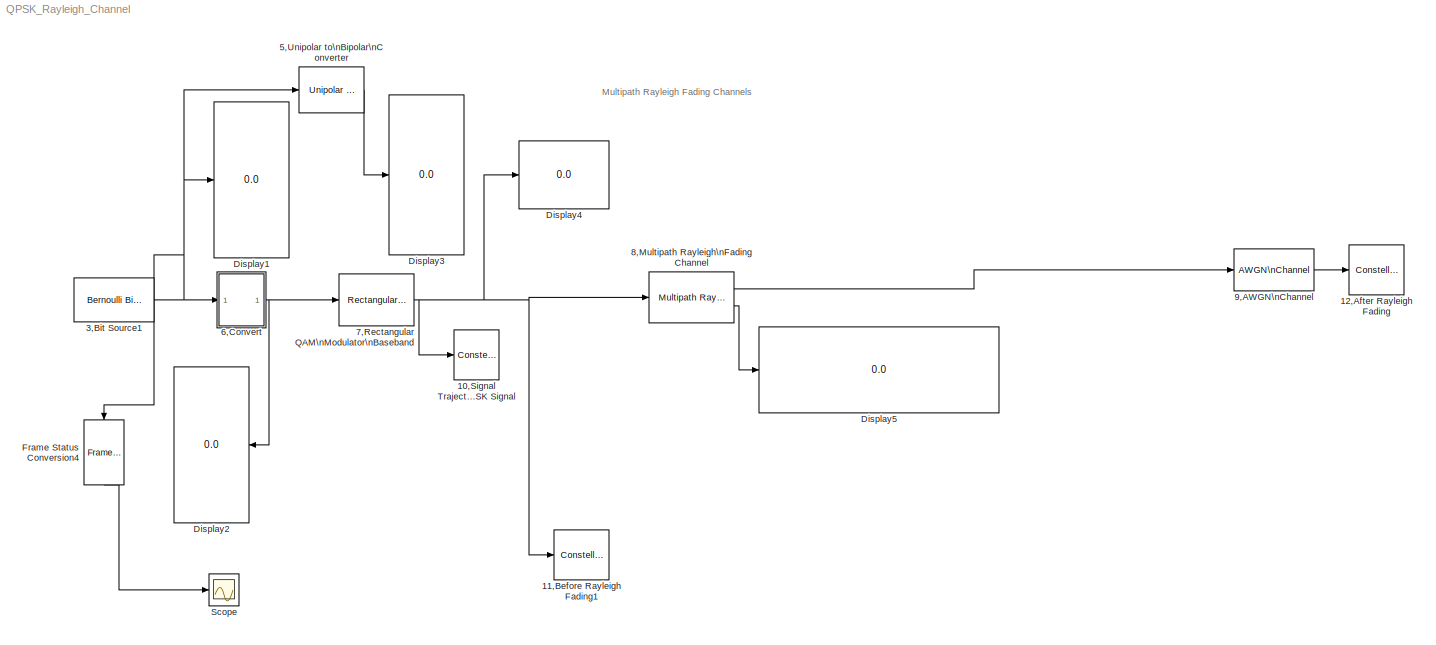
MODEL QPSK_Rayleigh_Channel
KIND model
CONFIG PreLoadFcn = bitRate = 500000;\nbitsPerFrame = 200;\nmaxDopplerShift = 200;\ndelayVector = [0:3]*(4e-6);\ngainVector = [0:3]*(-3);\nLOSDopplerShift = 100;\nKFactor = 10;
BLOCK [ConstellationDiagram] 10,Signal Trajectory\nof QPSK Signal
  Ports = [1]
  SID = 1
  ScopeSpecificationString = comm.scopes.ConstellationDiagramBlockCfg('CurrentConfiguration', extmgr.ConfigurationSet(extmgr.Configuration('Tools','Measurements',true),extmgr.Configuration('Core','General UI',true,'ShowNewAction',false,'ShowLoadConfigSet',false,'ShowSaveConfigSet',false,'FigureColor',[0.156862745098039 0.156862745098039 0.156862745098039]),extmgr.Configuration('Tools','Plot Navigation',true,'XDataDisplay',80,...<+734ch>
  Tag = SignalTrajectory
BLOCK [ConstellationDiagram] 11,Before Rayleigh Fading1
  Ports = [1]
  SID = 2
  ScopeSpecificationString = comm.scopes.ConstellationDiagramBlockCfg('CurrentConfiguration', extmgr.ConfigurationSet(extmgr.Configuration('Tools','Measurements',true),extmgr.Configuration('Core','General UI',true,'ShowNewAction',false,'ShowLoadConfigSet',false,'ShowSaveConfigSet',false,'FigureColor',[0.156862745098039 0.156862745098039 0.156862745098039]),extmgr.Configuration('Tools','Plot Navigation',true,'XDataDisplay',80,...<+714ch>
  Tag = ScatterPlot
BLOCK [ConstellationDiagram] 12,After Rayleigh Fading
  Ports = [1]
  SID = 3
  ScopeSpecificationString = comm.scopes.ConstellationDiagramBlockCfg('CurrentConfiguration', extmgr.ConfigurationSet(extmgr.Configuration('Tools','Measurements',true),extmgr.Configuration('Core','General UI',true,'ShowNewAction',false,'ShowLoadConfigSet',false,'ShowSaveConfigSet',false,'FigureColor',[0.156862745098039 0.156862745098039 0.156862745098039]),extmgr.Configuration('Tools','Plot Navigation',true,'XDataDisplay',80,...<+710ch>
  Tag = ScatterPlot
BLOCK [Reference] 3,Bit Source1  REF=commrandsrc2/Bernoulli Binary\nGenerator
  P = 0.5
  Ports = [0, 1]
  SID = 4
  SourceBlock = commrandsrc2/Bernoulli Binary\nGenerator
  SourceType = Bernoulli Binary Generator
  Ts = 1/500000
  frameBased = on
  orient = off
  outDataType = double
  sampPerFrame = 8
  seed = 61
BLOCK [Reference] 5,Unipolar to\nBipolar\nConverter  REF=commutil2/Unipolar to\nBipolar\nConverter
  M = 2
  Ports = [1, 1]
  SID = 5
  SourceBlock = commutil2/Unipolar to\nBipolar\nConverter
  SourceType = Unipolar to Bipolar Converter
  dataType = Inherit via internal rule
  polarity = Negative
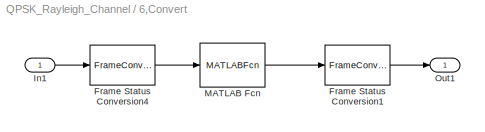
BLOCK [SubSystem] 6,Convert
  Ports = [1, 1]
  RequestExecContextInheritance = off
  SID = 6
BLOCK [FrameConversion] 6,Convert/Frame Status Conversion1
  Ports = [1, 1]
  SID = 8
BLOCK [FrameConversion] 6,Convert/Frame Status Conversion4
  OutFrame = Sample-based
  Ports = [1, 1]
  SID = 9
BLOCK [Inport] 6,Convert/In1
  IconDisplay = Port number
  SID = 7
BLOCK [MATLABFcn] 6,Convert/MATLAB Fcn
  MATLABFcn = f_convert
  Ports = [1, 1]
  SID = 10
BLOCK [Outport] 6,Convert/Out1
  IconDisplay = Port number
  SID = 11
BLOCK [Reference] 7,Rectangular QAM\nModulator\nBaseband  REF=commdigbbndam3/Rectangular QAM\nModulator\nBaseband
  AvgPow = 1
  Enc = Gray
  InType = Bit
  M = 4
  Mapping = [0,1,2,3]
  MinDist = 2
  PeakPow = 1
  Ph = -pi/2
  Ports = [1, 1]
  PowType = Average Power
  SID = 12
  SourceBlock = commdigbbndam3/Rectangular QAM\nModulator\nBaseband
  SourceType = Rectangular QAM Modulator Baseband
  outDtype = double
  outFracLen = 15
  outFracLenMode = Best precision
  outUDDataType = sfix(16)
  outWordLen = 16
BLOCK [Reference] 8,Multipath Rayleigh\nFading Channel  REF=commchan3/Multipath Rayleigh\nFading Channel
  Ports = [1, 2]
  SID = 13
  SourceBlock = commchan3/Multipath Rayleigh\nFading Channel
  SourceType = Multipath Rayleigh Fading Channel
  avgPathGaindB = [ 0    -3000 ]
  centerFreqGaussian1 = 0.0
  centerFreqGaussian2 = 0.0
  coeffBell = 9
  coeffRounded = [1 -1.72 0.785]
  dopplerSpectrum = doppler.jakes
  enableProbe = 0
  freqMinMaxAJakes = [0 1]
  freqMinMaxRJakes = [0 1]
  gainGaussian1 = 0.5
  gainGaussian2 = 0.5
  maxDopplerShift = 200
  normalizePathGains = on
  openVisAtStart = on
  outDelay = off
  outPathGains = on
  pathDelays = [ 0    0.0400 ].*1e-4
  seed = 12345
  sigmaGaussian = 1/sqrt(2)
  sigmaGaussian1 = 1/sqrt(2)
  sigmaGaussian2 = 1/sqrt(2)
  spectrumType = Jakes
BLOCK [Reference] 9,AWGN\nChannel  REF=commchan3/AWGN\nChannel
  EbNodB = 10
  EsNodB = 15
  InputProcessing = Inherited (this choice will be removed - see release notes)
  Ports = [1, 1]
  Ps = 1
  SID = 14
  SNRdB = 200
  SourceBlock = commchan3/AWGN\nChannel
  SourceType = AWGN Channel
  Tsym = 1e-6
  UserData = DataTag0
  UserDataPersistent = on
  bitsPerSym = 1
  noiseMode = Signal to noise ratio  (SNR)
  seed = 67
  variance = 1
BLOCK [Display] Display1
  Decimation = 1
  Ports = [1]
  SID = 15
BLOCK [Display] Display2
  Decimation = 1
  Ports = [1]
  SID = 16
BLOCK [Display] Display3
  Decimation = 1
  Ports = [1]
  SID = 17
BLOCK [Display] Display4
  Decimation = 1
  Ports = [1]
  SID = 18
BLOCK [Display] Display5
  Decimation = 1
  Ports = [1]
  SID = 20
BLOCK [FrameConversion] Frame Status Conversion4
  OutFrame = Sample-based
  Ports = [1, 1]
  SID = 42
BLOCK [Scope] Scope
  DataFormat = StructureWithTime
  Floating = off
  NumInputPorts = 1
  Ports = [1]
  SID = 41
  SampleTime = 0
  ShowLegends = off
ANNOTATION (root): Multipath Rayleigh Fading Channels
NET 3,Bit Source1:1 -> 5,Unipolar to\nBipolar\nConverter:1, 6,Convert:1, Display1:1, Frame Status Conversion4:1
LINE 5,Unipolar to\nBipolar\nConverter:1 -> Display3:1
LINE 6,Convert/Frame Status Conversion1:1 -> 6,Convert/Out1:1
LINE 6,Convert/Frame Status Conversion4:1 -> 6,Convert/MATLAB Fcn:1
LINE 6,Convert/In1:1 -> 6,Convert/Frame Status Conversion4:1
LINE 6,Convert/MATLAB Fcn:1 -> 6,Convert/Frame Status Conversion1:1
NET 6,Convert:1 -> 7,Rectangular QAM\nModulator\nBaseband:1, Display2:1
NET 7,Rectangular QAM\nModulator\nBaseband:1 -> 10,Signal Trajectory\nof QPSK Signal:1, 11,Before Rayleigh Fading1:1, 8,Multipath Rayleigh\nFading Channel:1, Display4:1
LINE 8,Multipath Rayleigh\nFading Channel:1 -> 9,AWGN\nChannel:1
LINE 8,Multipath Rayleigh\nFading Channel:2 -> Display5:1
LINE 9,AWGN\nChannel:1 -> 12,After Rayleigh Fading:1
LINE Frame Status Conversion4:1 -> Scope:1
note: NET lines group one-source signal fan-out (src -> all destinations, sorted); 1:1 wires keep LINE
